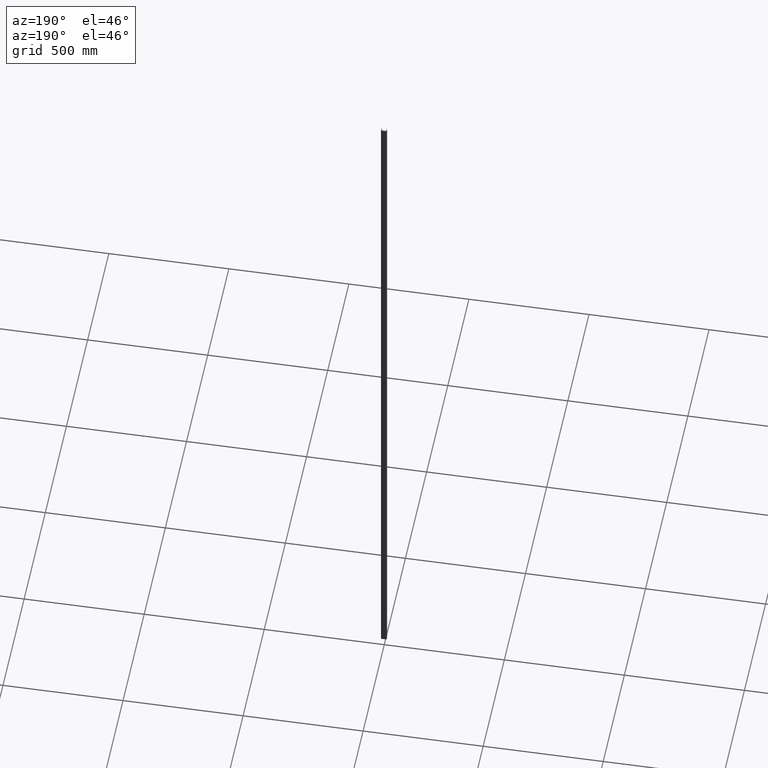
[diagram: clean part render]
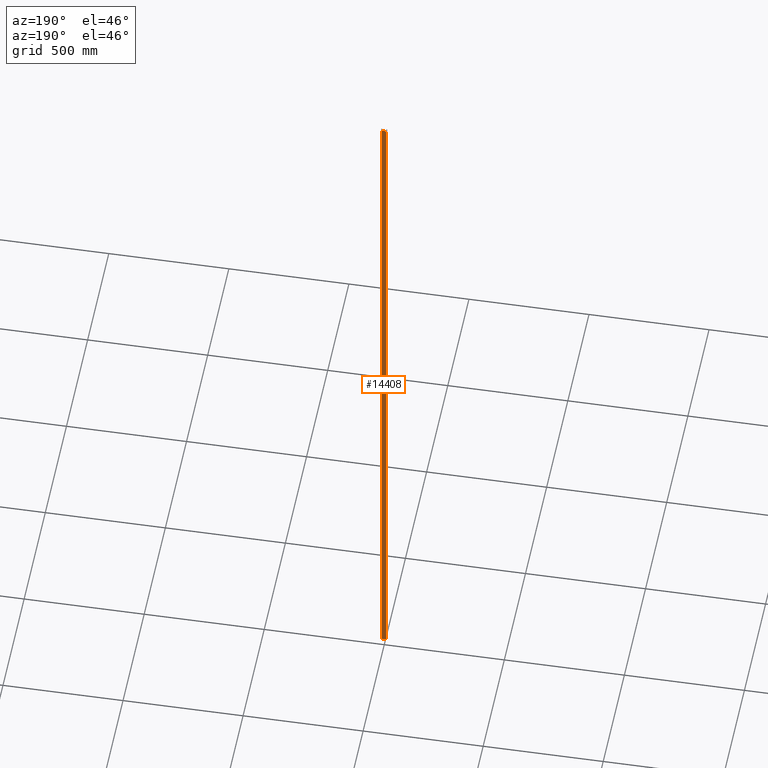
[diagram: same view with one face highlighted and labeled with its STEP entity id]
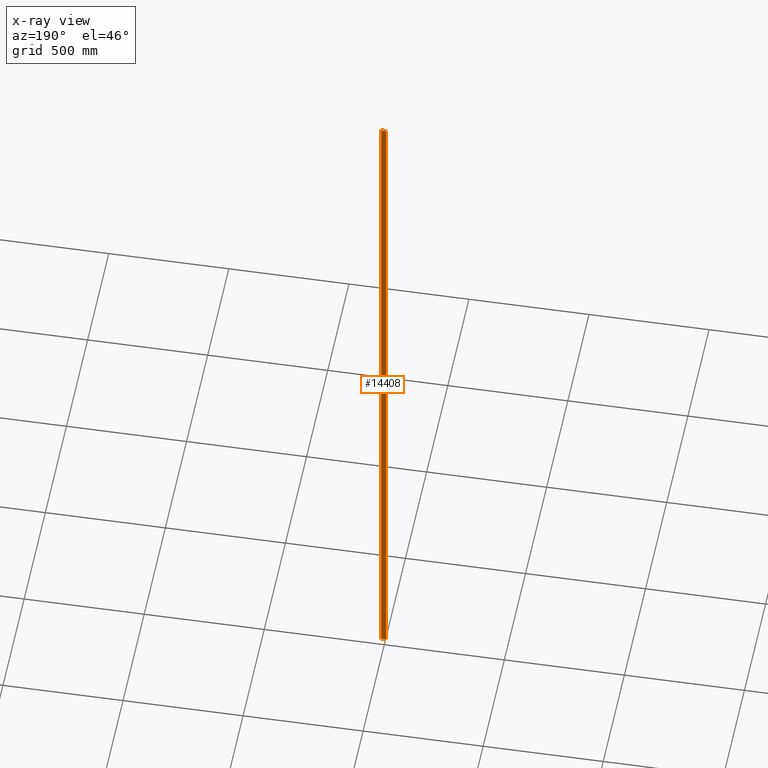
[diagram: x-ray of the same camera — body ghosted, the highlighted face saturated]
A machine part, auxiliary view. The second image highlights one B-rep face of the part: STEP entity #14408.
The next image is the same camera in x-ray: the body ghosted, the highlighted face saturated — about 0% of this face is hidden behind the body in this view.
In plain terms, the highlighted planar face has unit normal (-0, 1, 0).
Its self-contained STEP definition (entity closure, byte-faithful):
#31 = VERTEX_POINT ( 'NONE', #14745 ) ;
#318 = CARTESIAN_POINT ( 'NONE',  ( 9.999999999999998200, 12.00000000000000200, 1500.000000000000000 ) ) ;
#494 = ORIENTED_EDGE ( 'NONE', *, *, #7659, .T. ) ;
#777 = CARTESIAN_POINT ( 'NONE',  ( -10.00000000000000200, 12.00000000000000000, 1500.000000000000000 ) ) ;
#945 = LINE ( 'NONE', #10728, #10358 ) ;
#1538 = DIRECTION ( 'NONE',  ( 1.000000000000000000, 8.673617379884035500E-017, 0.0000000000000000000 ) ) ;
#1575 = CARTESIAN_POINT ( 'NONE',  ( 9.999999999999998200, 12.00000000000000200, -1500.000000000000000 ) ) ;
#2034 = VECTOR ( 'NONE', #1538, 1000.000000000000000 ) ;
#2070 = DIRECTION ( 'NONE',  ( -0.0000000000000000000, -0.0000000000000000000, -1.000000000000000000 ) ) ;
#2136 = VECTOR ( 'NONE', #11469, 1000.000000000000000 ) ;
#2717 = EDGE_CURVE ( 'NONE', #8412, #10701, #12720, .T. ) ;
#4075 = ORIENTED_EDGE ( 'NONE', *, *, #5221, .F. ) ;
#5221 = EDGE_CURVE ( 'NONE', #31, #15130, #10582, .T. ) ;
#5485 = LINE ( 'NONE', #15184, #2034 ) ;
#6800 = CARTESIAN_POINT ( 'NONE',  ( -10.00000000000000200, 12.00000000000000000, 1500.000000000000000 ) ) ;
#7056 = AXIS2_PLACEMENT_3D ( 'NONE', #6800, #12797, #10542 ) ;
#7659 = EDGE_CURVE ( 'NONE', #31, #8412, #945, .T. ) ;
#8412 = VERTEX_POINT ( 'NONE', #15227 ) ;
#8586 = DIRECTION ( 'NONE',  ( 1.000000000000000000, 8.673617379884035500E-017, 0.0000000000000000000 ) ) ;
#9807 = VECTOR ( 'NONE', #2070, 1000.000000000000000 ) ;
#10055 = ORIENTED_EDGE ( 'NONE', *, *, #2717, .T. ) ;
#10358 = VECTOR ( 'NONE', #8586, 1000.000000000000000 ) ;
#10542 = DIRECTION ( 'NONE',  ( -1.000000000000000000, -8.673617379884035500E-017, 0.0000000000000000000 ) ) ;
#10582 = LINE ( 'NONE', #777, #9807 ) ;
#10701 = VERTEX_POINT ( 'NONE', #1575 ) ;
#10728 = CARTESIAN_POINT ( 'NONE',  ( -10.00000000000000200, 12.00000000000000000, 1500.000000000000000 ) ) ;
#11469 = DIRECTION ( 'NONE',  ( -0.0000000000000000000, -0.0000000000000000000, -1.000000000000000000 ) ) ;
#12720 = LINE ( 'NONE', #318, #2136 ) ;
#12797 = DIRECTION ( 'NONE',  ( -8.673617379884035500E-017, 1.000000000000000000, 0.0000000000000000000 ) ) ;
#13479 = EDGE_CURVE ( 'NONE', #15130, #10701, #5485, .T. ) ;
#14042 = CARTESIAN_POINT ( 'NONE',  ( -10.00000000000000200, 12.00000000000000000, -1500.000000000000000 ) ) ;
#14408 = ADVANCED_FACE ( 'NONE', ( #15521 ), #15459, .T. ) ;
#14547 = ORIENTED_EDGE ( 'NONE', *, *, #13479, .F. ) ;
#14745 = CARTESIAN_POINT ( 'NONE',  ( -10.00000000000000200, 12.00000000000000000, 1500.000000000000000 ) ) ;
#15130 = VERTEX_POINT ( 'NONE', #14042 ) ;
#15184 = CARTESIAN_POINT ( 'NONE',  ( -10.00000000000000200, 12.00000000000000000, -1500.000000000000000 ) ) ;
#15227 = CARTESIAN_POINT ( 'NONE',  ( 9.999999999999998200, 12.00000000000000200, 1500.000000000000000 ) ) ;
#15459 = PLANE ( 'NONE',  #7056 ) ;
#15521 = FACE_OUTER_BOUND ( 'NONE', #15662, .T. ) ;
#15662 = EDGE_LOOP ( 'NONE', ( #14547, #4075, #494, #10055 ) ) ;